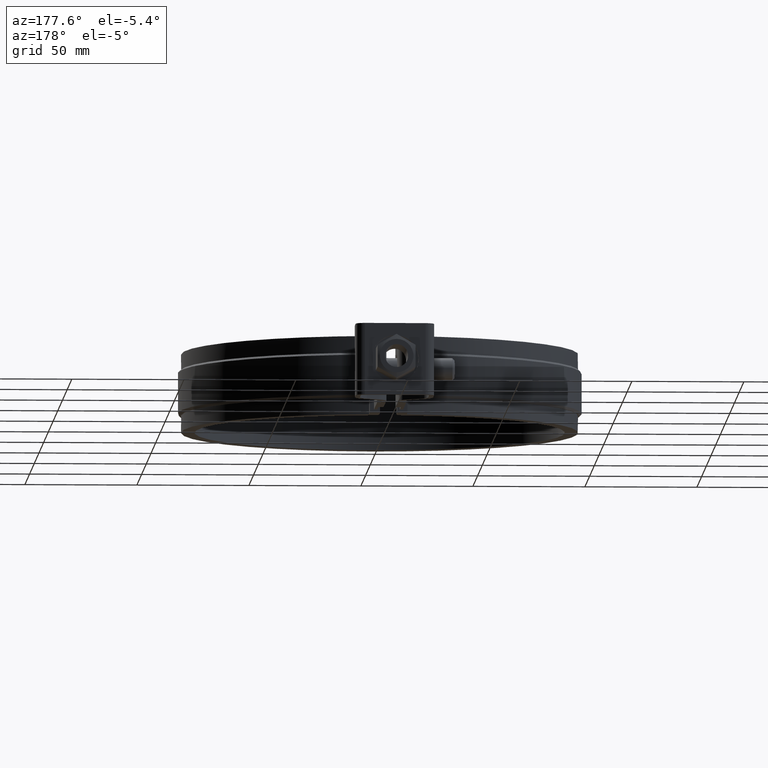
[diagram: clean part render]
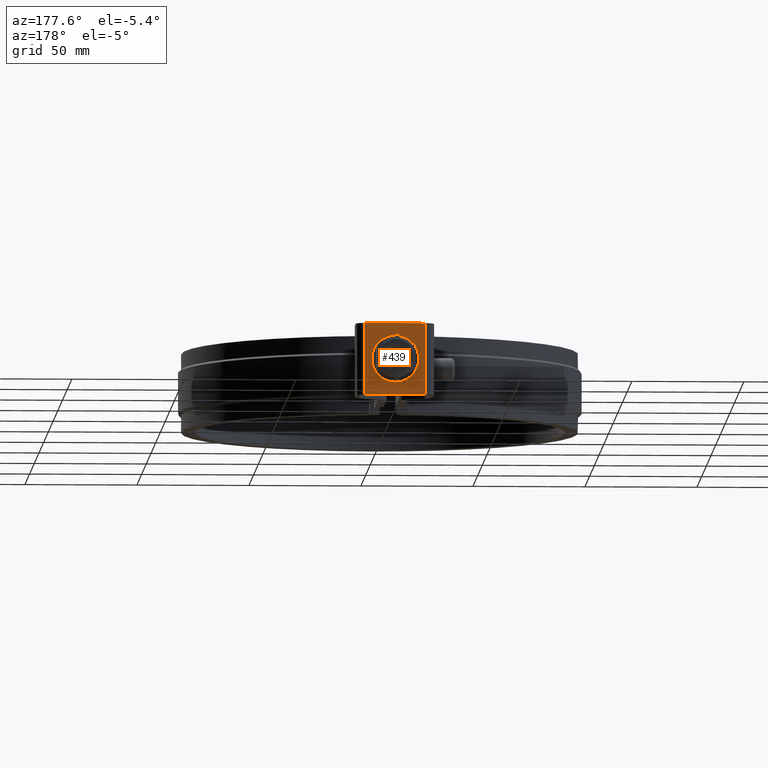
[diagram: same view with one face highlighted and labeled with its STEP entity id]
A machine part, auxiliary view. The second image highlights one B-rep face of the part: STEP entity #439.
In plain terms, the highlighted planar face has unit normal (-0, 1, -0).
Its self-contained STEP definition (entity closure, byte-faithful):
#439 = ADVANCED_FACE( '', ( #756, #757 ), #758, .T. );
#756 = FACE_OUTER_BOUND( '', #1891, .T. );
#757 = FACE_BOUND( '', #1892, .T. );
#758 = PLANE( '', #1893 );
#1891 = EDGE_LOOP( '', ( #4592, #4593, #4594, #4595 ) );
#1892 = EDGE_LOOP( '', ( #4596 ) );
#1893 = AXIS2_PLACEMENT_3D( '', #4597, #4598, #4599 );
#4592 = ORIENTED_EDGE( '', *, *, #5286, .F. );
#4593 = ORIENTED_EDGE( '', *, *, #5205, .F. );
#4594 = ORIENTED_EDGE( '', *, *, #5298, .T. );
#4595 = ORIENTED_EDGE( '', *, *, #5310, .T. );
#4596 = ORIENTED_EDGE( '', *, *, #5331, .T. );
#4597 = CARTESIAN_POINT( '', ( 13.5000000000000, 166.102986998689, -31.9999999999992 ) );
#4598 = DIRECTION( '', ( -3.03451482752472E-016, 1.00000000000000, -1.75137682134619E-013 ) );
#4599 = DIRECTION( '', ( 1.00000000000000, 3.03451482752632E-016, 9.11521279052733E-016 ) );
#5205 = EDGE_CURVE( '', #5835, #5831, #5837, .T. );
#5286 = EDGE_CURVE( '', #5831, #5975, #5976, .T. );
#5298 = EDGE_CURVE( '', #5835, #5996, #5998, .T. );
#5310 = EDGE_CURVE( '', #5996, #5975, #6018, .T. );
#5331 = EDGE_CURVE( '', #6044, #6044, #6045, .F. );
#5831 = VERTEX_POINT( '', #8760 );
#5835 = VERTEX_POINT( '', #8765 );
#5837 = LINE( '', #8767, #8768 );
#5975 = VERTEX_POINT( '', #9078 );
#5976 = LINE( '', #9079, #9080 );
#5996 = VERTEX_POINT( '', #9106 );
#5998 = LINE( '', #9108, #9109 );
#6018 = LINE( '', #9136, #9137 );
#6044 = VERTEX_POINT( '', #9174 );
#6045 = CIRCLE( '', #9175, 10.4999999999996 );
#8760 = CARTESIAN_POINT( '', ( 13.4999999999999, 166.102986998695, -3.36536354339493E-013 ) );
#8765 = CARTESIAN_POINT( '', ( 13.5000000000000, 166.102986998689, -31.9999999999992 ) );
#8767 = CARTESIAN_POINT( '', ( 13.5000000000000, 166.102986998689, -31.9999999999992 ) );
#8768 = VECTOR( '', #9820, 999.999999999989 );
#9078 = CARTESIAN_POINT( '', ( -13.5000000000001, 166.102986998695, -3.64291929955121E-013 ) );
#9079 = CARTESIAN_POINT( '', ( 13.4999999999999, 166.102986998695, -3.36536354339493E-013 ) );
#9080 = VECTOR( '', #9942, 1000.00000000002 );
#9106 = CARTESIAN_POINT( '', ( -13.5000000000001, 166.102986998689, -31.9999999999993 ) );
#9108 = CARTESIAN_POINT( '', ( 13.5000000000000, 166.102986998689, -31.9999999999992 ) );
#9109 = VECTOR( '', #9964, 1000.00000000002 );
#9136 = CARTESIAN_POINT( '', ( -13.5000000000001, 166.102986998689, -31.9999999999993 ) );
#9137 = VECTOR( '', #9984, 999.999999999989 );
#9174 = CARTESIAN_POINT( '', ( -7.28883803032074E-014, 166.102986998694, -5.50000000000016 ) );
#9175 = AXIS2_PLACEMENT_3D( '', #10023, #10024, #10025 );
#9820 = DIRECTION( '', ( -9.11521279052786E-016, 1.75137682134619E-013, 1.00000000000000 ) );
#9942 = DIRECTION( '', ( -1.00000000000000, -3.03451482752632E-016, -9.11521279052733E-016 ) );
#9964 = DIRECTION( '', ( -1.00000000000000, -3.03451482752632E-016, -9.11521279052733E-016 ) );
#9984 = DIRECTION( '', ( -9.11521279052786E-016, 1.75137682134619E-013, 1.00000000000000 ) );
#10023 = CARTESIAN_POINT( '', ( -6.33174068731534E-014, 166.102986998692, -15.9999999999998 ) );
#10024 = DIRECTION( '', ( -3.03451482752472E-016, 1.00000000000000, -1.75137682134619E-013 ) );
#10025 = DIRECTION( '', ( -9.11521279052786E-016, 1.75137682134619E-013, 1.00000000000000 ) );